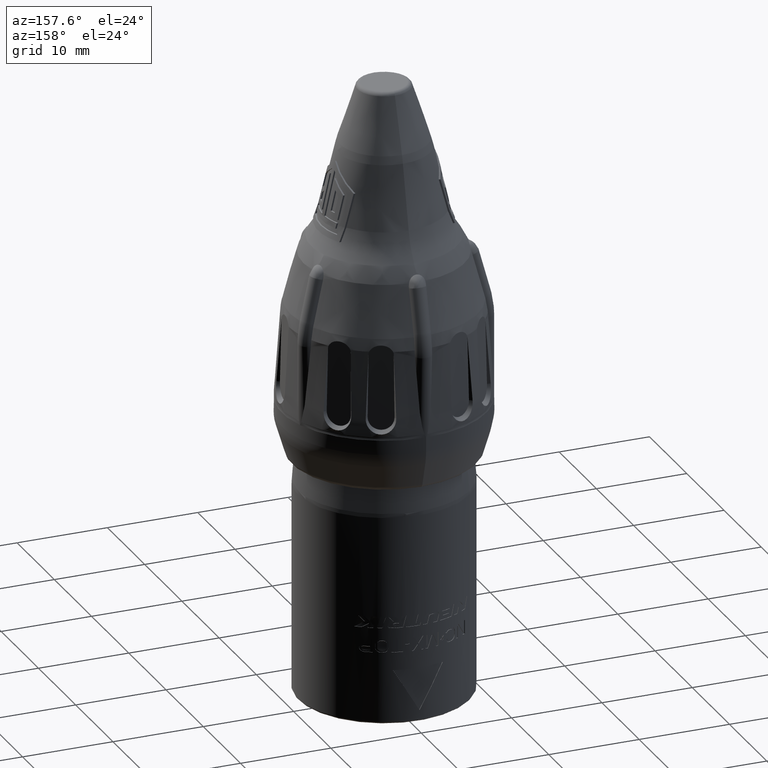
[diagram: clean part render]
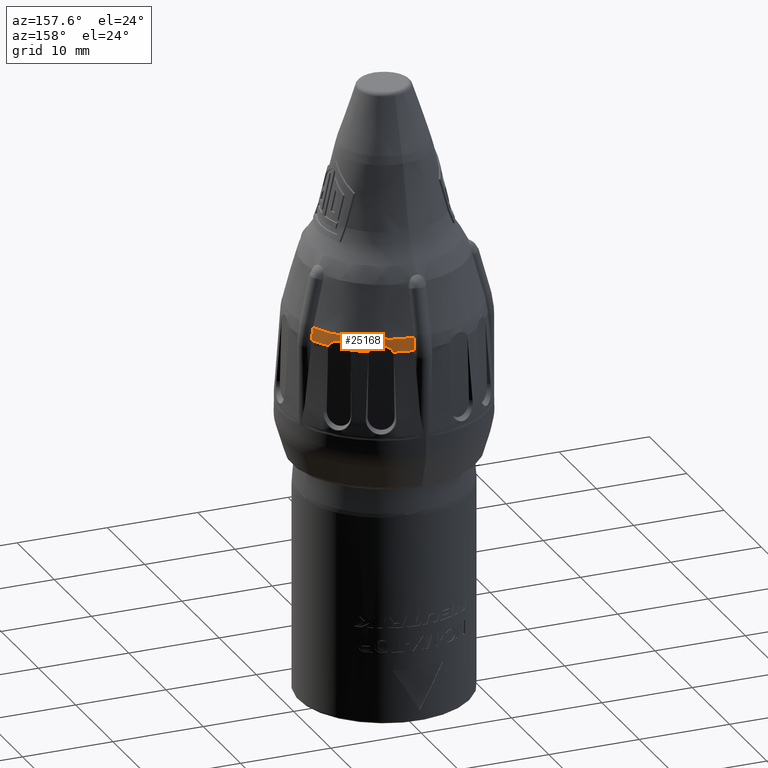
[diagram: same view with one face highlighted and labeled with its STEP entity id]
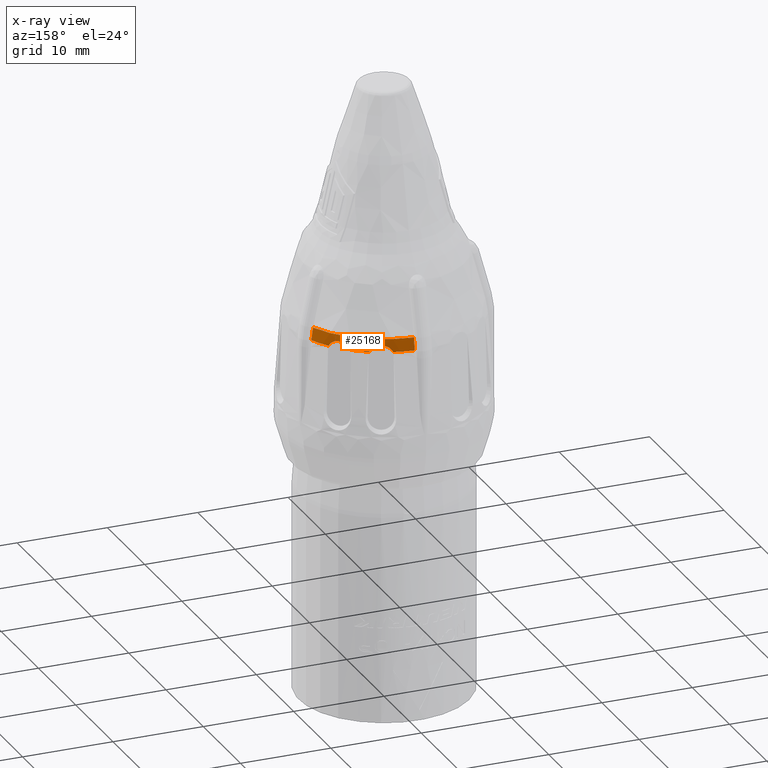
[diagram: x-ray of the same camera — body ghosted, the highlighted face saturated]
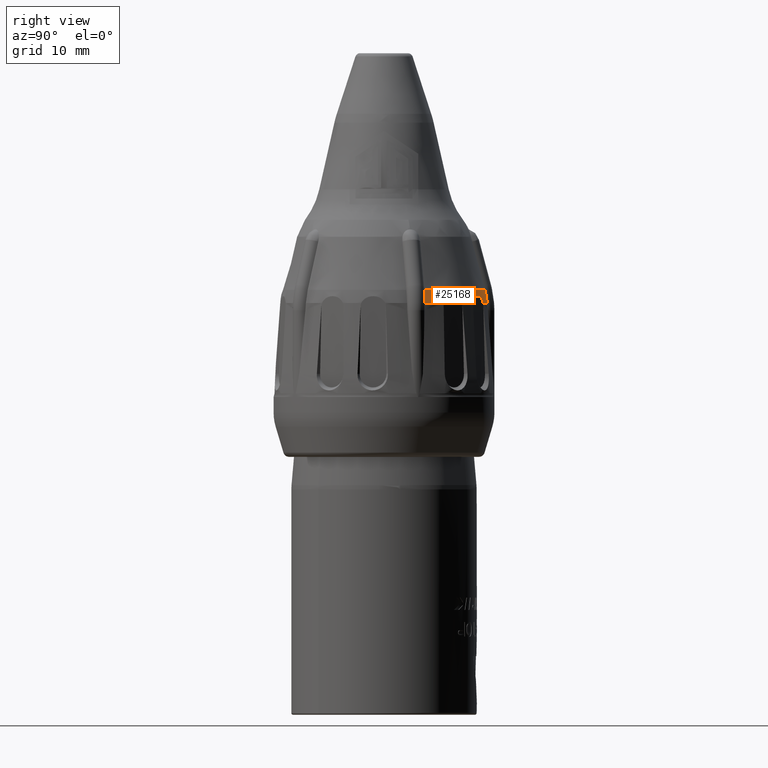
[diagram: same view with one face highlighted and labeled with its STEP entity id]
A machine part, auxiliary view. The second image highlights one B-rep face of the part: STEP entity #25168.
The next image is the same camera in x-ray: the body ghosted, the highlighted face saturated — about 0% of this face is hidden behind the body in this view.
A second angle (right view) of the same face is appended — the face is thin or edge-on in the first view.
In plain terms, the highlighted face is a freeform B-spline surface patch.
Its self-contained STEP definition (entity closure, byte-faithful):
#6209=CARTESIAN_POINT('',(9.765106300860E0,4.173738912301E0,1.313597576435E1));
#6211=CARTESIAN_POINT('',(0.E0,0.E0,1.313597576435E1));
#6212=DIRECTION('',(0.E0,0.E0,1.E0));
#6213=DIRECTION('',(9.195300807137E-1,3.930196313960E-1,0.E0));
#6214=AXIS2_PLACEMENT_3D('',#6211,#6212,#6213);
#6220=CARTESIAN_POINT('',(8.661259715281E0,6.144914785382E0,1.313597576435E1));
#6251=CARTESIAN_POINT('',(7.016600467235E0,7.971493928891E0,1.313597576435E1));
#6257=CARTESIAN_POINT('',(0.E0,0.E0,1.313597576435E1));
#6258=DIRECTION('',(0.E0,0.E0,1.E0));
#6259=DIRECTION('',(6.607173537276E-1,7.506347836886E-1,0.E0));
#6260=AXIS2_PLACEMENT_3D('',#6257,#6258,#6259);
#6266=CARTESIAN_POINT('',(5.413092458564E0,9.136510691187E0,1.313597576435E1));
#6300=CARTESIAN_POINT('',(3.167684803999E0,1.013623058921E1,1.313597576435E1));
#6306=CARTESIAN_POINT('',(0.E0,0.E0,1.313597576435E1));
#6307=DIRECTION('',(0.E0,0.E0,1.E0));
#6308=DIRECTION('',(2.982846651900E-1,9.544769554643E-1,0.E0));
#6309=AXIS2_PLACEMENT_3D('',#6306,#6307,#6308);
#6311=CARTESIAN_POINT('',(9.518777910151E-1,1.057692423373E1,1.313597576435E1));
#7238=CARTESIAN_POINT('',(9.765106300860E0,4.173738912301E0,1.313597576435E1));
#7239=CARTESIAN_POINT('',(9.754838265735E0,4.170006344522E0,1.328735874466E1));
#7240=CARTESIAN_POINT('',(9.724862131888E0,4.160244599280E0,1.358950848419E1));
#7241=CARTESIAN_POINT('',(9.651726592705E0,4.138765216959E0,1.403900834470E1));
#7242=CARTESIAN_POINT('',(9.584367682131E0,4.119831049517E0,1.433510603982E1));
#7243=CARTESIAN_POINT('',(9.546114819506E0,4.109178109281E0,1.448195434073E1));
#7245=CARTESIAN_POINT('',(9.581489079675E-1,1.034870057307E1,1.448195434073E1));
#7246=CARTESIAN_POINT('',(9.564596715615E-1,1.038837314691E1,1.433510603982E1));
#7247=CARTESIAN_POINT('',(9.536520867981E-1,1.045828625726E1,1.403900834470E1));
#7248=CARTESIAN_POINT('',(9.514800688207E-1,1.053447978254E1,1.358950848419E1));
#7249=CARTESIAN_POINT('',(9.515009054582E-1,1.056600532514E1,1.328735874466E1));
#7250=CARTESIAN_POINT('',(9.518777910151E-1,1.057692423373E1,1.313597576435E1));
#7426=CARTESIAN_POINT('',(0.E0,0.E0,1.448195434073E1));
#7427=DIRECTION('',(0.E0,0.E0,-1.E0));
#7428=DIRECTION('',(9.219209458277E-2,9.957412403313E-1,0.E0));
#7429=AXIS2_PLACEMENT_3D('',#7426,#7427,#7428);
#9395=CARTESIAN_POINT('',(3.167684803999E0,1.013623058921E1,1.313597576435E1));
#9396=CARTESIAN_POINT('',(3.205110227222E0,1.011740118484E1,1.323046301842E1));
#9397=CARTESIAN_POINT('',(3.306209862961E0,1.006834229913E1,1.340693665602E1));
#9398=CARTESIAN_POINT('',(3.560826009962E0,9.949550954298E0,1.364370436888E1));
#9399=CARTESIAN_POINT('',(3.891709699256E0,9.798600025003E0,1.380210473883E1));
#9400=CARTESIAN_POINT('',(4.283132421958E0,9.622954467828E0,1.386198137148E1));
#9401=CARTESIAN_POINT('',(4.672380667944E0,9.450990266713E0,1.380352864424E1));
#9402=CARTESIAN_POINT('',(5.008815891094E0,9.304815682667E0,1.364582568895E1));
#9403=CARTESIAN_POINT('',(5.270098792440E0,9.193960367757E0,1.340703457454E1));
#9404=CARTESIAN_POINT('',(5.374097837026E0,9.151707950065E0,1.323036414137E1));
#9405=CARTESIAN_POINT('',(5.413092458564E0,9.136510691187E0,1.313597576435E1));
#9435=CARTESIAN_POINT('',(7.016600467235E0,7.971493928891E0,1.313597576435E1));
#9436=CARTESIAN_POINT('',(7.041728099337E0,7.940785442162E0,1.322546434638E1));
#9437=CARTESIAN_POINT('',(7.109337847008E0,7.860294926081E0,1.339803470479E1));
#9438=CARTESIAN_POINT('',(7.306151906734E0,7.633759538433E0,1.365202848425E1));
#9439=CARTESIAN_POINT('',(7.552320103070E0,7.355545462569E0,1.380588964987E1));
#9440=CARTESIAN_POINT('',(7.828949717994E0,7.046591701817E0,1.386100730863E1));
#9441=CARTESIAN_POINT('',(8.110651663507E0,6.735526143127E0,1.380363124366E1));
#9442=CARTESIAN_POINT('',(8.357001477300E0,6.466739391570E0,1.364990301580E1));
#9443=CARTESIAN_POINT('',(8.559201147406E0,6.250006179658E0,1.339970921391E1));
#9444=CARTESIAN_POINT('',(8.633024545662E0,6.173439432300E0,1.322649491510E1));
#9445=CARTESIAN_POINT('',(8.661259715281E0,6.144914785382E0,1.313597576435E1));
#13067=VERTEX_POINT('',#6311);
#13126=VERTEX_POINT('',#6209);
#13233=VERTEX_POINT('',#6220);
#13234=VERTEX_POINT('',#6251);
#13235=VERTEX_POINT('',#6266);
#13236=VERTEX_POINT('',#6300);
#13410=VERTEX_POINT('',#7245);
#13417=VERTEX_POINT('',#7243);
#25124=CARTESIAN_POINT('',(-9.518777910151E-1,1.057692423373E1,
1.313597576435E1));
#25125=CARTESIAN_POINT('',(-9.489378391782E-1,1.054425654454E1,
1.359114461427E1));
#25126=CARTESIAN_POINT('',(-9.421438862909E-1,1.046876457948E1,
1.404115495702E1));
#25127=CARTESIAN_POINT('',(-9.315571135407E-1,1.035112816195E1,
1.448195434073E1));
#25128=CARTESIAN_POINT('',(-2.034445309992E1,8.831675677610E0,
1.313597576435E1));
#25129=CARTESIAN_POINT('',(-2.028161760484E1,8.804398330270E0,
1.359114461427E1));
#25130=CARTESIAN_POINT('',(-2.013641067052E1,8.741362939555E0,
1.404115495702E1));
#25131=CARTESIAN_POINT('',(-1.991013992050E1,8.643137154391E0,
1.448195434073E1));
#25132=CARTESIAN_POINT('',(-1.947094937681E1,-1.061967031386E1,
1.313597576435E1));
#25133=CARTESIAN_POINT('',(-1.941081176889E1,-1.058687059993E1,
1.359114461427E1));
#25134=CARTESIAN_POINT('',(-1.927183939871E1,-1.051107353809E1,
1.404115495702E1));
#25135=CARTESIAN_POINT('',(-1.905528374605E1,-1.039296169920E1,
1.448195434073E1));
#25136=CARTESIAN_POINT('',(0.E0,-1.061967031386E1,1.313597576435E1));
#25137=CARTESIAN_POINT('',(0.E0,-1.058687059993E1,1.359114461427E1));
#25138=CARTESIAN_POINT('',(0.E0,-1.051107353809E1,1.404115495702E1));
#25139=CARTESIAN_POINT('',(0.E0,-1.039296169920E1,1.448195434073E1));
#25140=CARTESIAN_POINT('',(1.947094937681E1,-1.061967031386E1,
1.313597576435E1));
#25141=CARTESIAN_POINT('',(1.941081176889E1,-1.058687059993E1,
1.359114461427E1));
#25142=CARTESIAN_POINT('',(1.927183939871E1,-1.051107353809E1,
1.404115495702E1));
#25143=CARTESIAN_POINT('',(1.905528374605E1,-1.039296169920E1,
1.448195434073E1));
#25144=CARTESIAN_POINT('',(2.034445309992E1,8.831675677610E0,1.313597576435E1));
#25145=CARTESIAN_POINT('',(2.028161760484E1,8.804398330270E0,1.359114461427E1));
#25146=CARTESIAN_POINT('',(2.013641067052E1,8.741362939555E0,1.404115495702E1));
#25147=CARTESIAN_POINT('',(1.991013992050E1,8.643137154391E0,1.448195434073E1));
#25148=CARTESIAN_POINT('',(9.518777910151E-1,1.057692423373E1,
1.313597576435E1));
#25149=CARTESIAN_POINT('',(9.489378391782E-1,1.054425654454E1,
1.359114461427E1));
#25150=CARTESIAN_POINT('',(9.421438862909E-1,1.046876457948E1,
1.404115495702E1));
#25151=CARTESIAN_POINT('',(9.315571135407E-1,1.035112816195E1,
1.448195434073E1));
#25152=(BOUNDED_SURFACE()B_SPLINE_SURFACE(3,3,((#25124,#25125,#25126,#25127),(
#25128,#25129,#25130,#25131),(#25132,#25133,#25134,#25135),(#25136,#25137,
#25138,#25139),(#25140,#25141,#25142,#25143),(#25144,#25145,#25146,#25147),(
#25148,#25149,#25150,#25151)),.UNSPECIFIED.,.F.,.F.,.F.)B_SPLINE_SURFACE_WITH_KNOTS((4,3,4),(4,4),(0.E0,1.E0,2.E0),(0.E0,1.E0),.UNSPECIFIED.)GEOMETRIC_REPRESENTATION_ITEM()RATIONAL_B_SPLINE_SURFACE(((1.918447582855E0,1.912688888171E0,
1.912688888171E0,1.918447582855E0),(6.968593260405E-1,6.947675305011E-1,
6.947675305011E-1,6.968593260405E-1),(6.968593260405E-1,6.947675305011E-1,
6.947675305011E-1,6.968593260405E-1),(1.918447582855E0,1.912688888171E0,
1.912688888171E0,1.918447582855E0),(6.968593260405E-1,6.947675305011E-1,
6.947675305011E-1,6.968593260405E-1),(6.968593260405E-1,6.947675305011E-1,
6.947675305011E-1,6.968593260405E-1),(1.918447582855E0,1.912688888171E0,
1.912688888171E0,1.918447582855E0)))REPRESENTATION_ITEM('')SURFACE());
#25154=ORIENTED_EDGE('',*,*,#25153,.T.);
#25156=ORIENTED_EDGE('',*,*,#25155,.F.);
#25158=ORIENTED_EDGE('',*,*,#25157,.T.);
#25159=ORIENTED_EDGE('',*,*,#24554,.F.);
#25161=ORIENTED_EDGE('',*,*,#25160,.T.);
#25162=ORIENTED_EDGE('',*,*,#24542,.F.);
#25164=ORIENTED_EDGE('',*,*,#25163,.T.);
#25165=ORIENTED_EDGE('',*,*,#24530,.F.);
#25166=EDGE_LOOP('',(#25154,#25156,#25158,#25159,#25161,#25162,#25164,#25165));
#25167=FACE_OUTER_BOUND('',#25166,.F.);
#6215=CIRCLE('',#6214,1.061967031386E1);
#6261=CIRCLE('',#6260,1.061967031386E1);
#6310=CIRCLE('',#6309,1.061967031386E1);
#7244=B_SPLINE_CURVE_WITH_KNOTS('',3,(#7238,#7239,#7240,#7241,#7242,#7243),
.UNSPECIFIED.,.F.,.F.,(4,1,1,4),(0.E0,3.333333333333E-1,6.666666666667E-1,1.E0),
.UNSPECIFIED.);
#7251=B_SPLINE_CURVE_WITH_KNOTS('',3,(#7245,#7246,#7247,#7248,#7249,#7250),
.UNSPECIFIED.,.F.,.F.,(4,1,1,4),(0.E0,3.333333333333E-1,6.666666666667E-1,1.E0),
.UNSPECIFIED.);
#7430=CIRCLE('',#7429,1.039296169920E1);
#9406=B_SPLINE_CURVE_WITH_KNOTS('',3,(#9395,#9396,#9397,#9398,#9399,#9400,#9401,
#9402,#9403,#9404,#9405),.UNSPECIFIED.,.F.,.F.,(4,1,1,1,1,1,1,1,4),(0.E0,
1.25E-1,2.5E-1,3.75E-1,5.E-1,6.25E-1,7.5E-1,8.75E-1,1.E0),.UNSPECIFIED.);
#9446=B_SPLINE_CURVE_WITH_KNOTS('',3,(#9435,#9436,#9437,#9438,#9439,#9440,#9441,
#9442,#9443,#9444,#9445),.UNSPECIFIED.,.F.,.F.,(4,1,1,1,1,1,1,1,4),(0.E0,
1.25E-1,2.5E-1,3.75E-1,5.E-1,6.25E-1,7.5E-1,8.75E-1,1.E0),.UNSPECIFIED.);
#24530=EDGE_CURVE('',#13126,#13233,#6215,.T.);
#24542=EDGE_CURVE('',#13234,#13235,#6261,.T.);
#24554=EDGE_CURVE('',#13236,#13067,#6310,.T.);
#25153=EDGE_CURVE('',#13126,#13417,#7244,.T.);
#25155=EDGE_CURVE('',#13410,#13417,#7430,.T.);
#25157=EDGE_CURVE('',#13410,#13067,#7251,.T.);
#25160=EDGE_CURVE('',#13236,#13235,#9406,.T.);
#25163=EDGE_CURVE('',#13234,#13233,#9446,.T.);
#25168=ADVANCED_FACE('',(#25167),#25152,.T.);